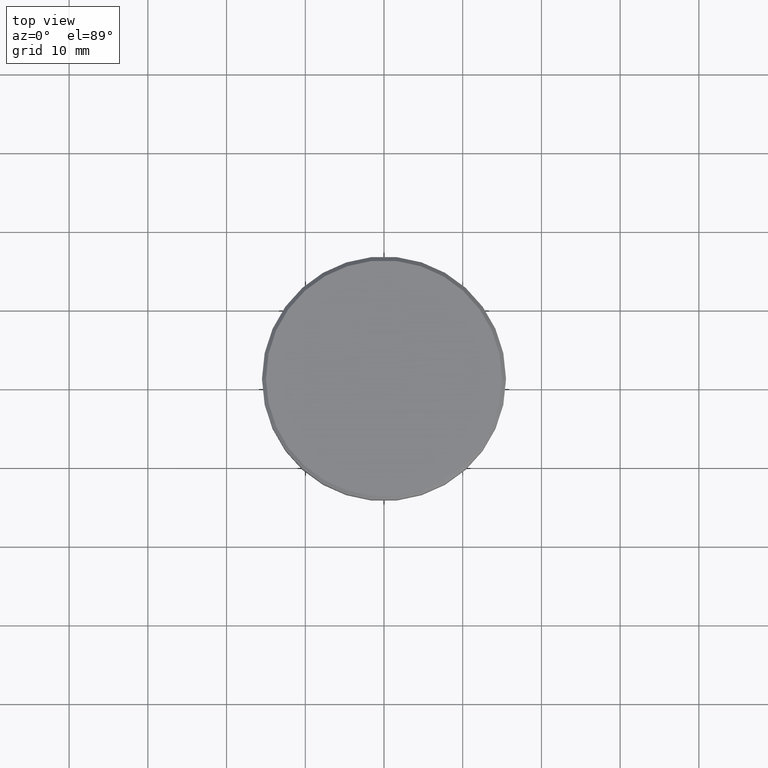
[diagram: clean part render]
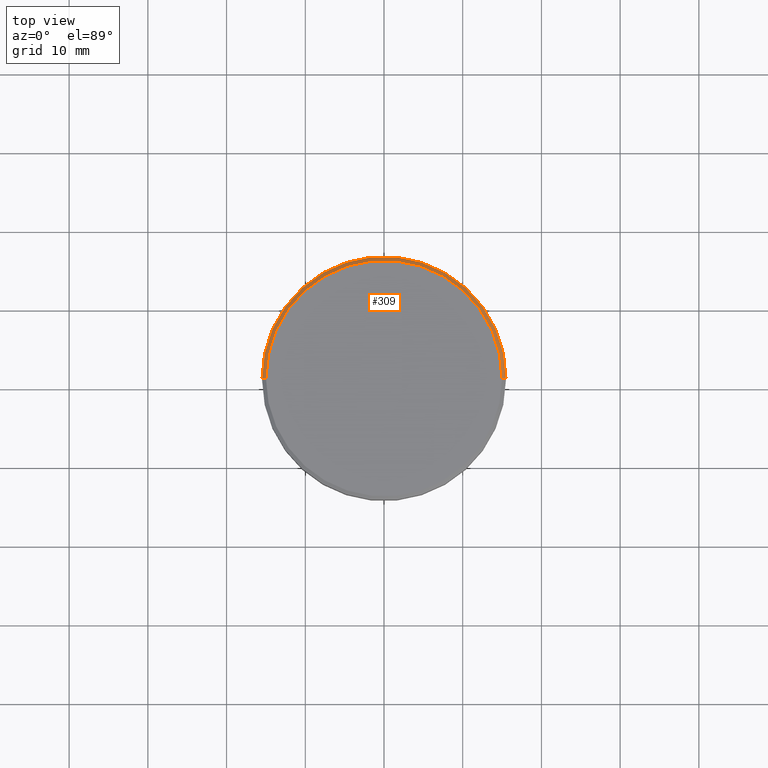
[diagram: same view with one face highlighted and labeled with its STEP entity id]
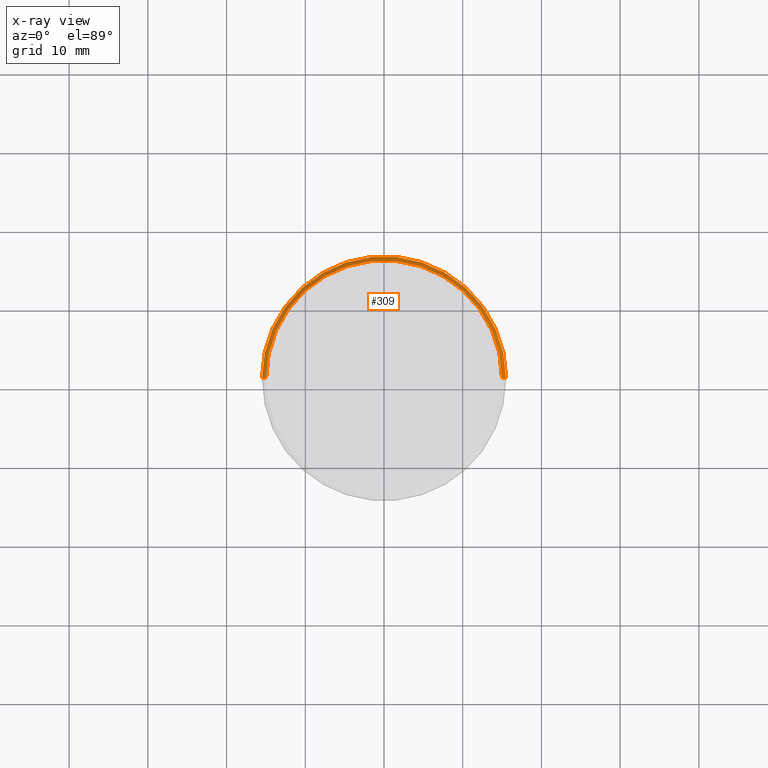
[diagram: x-ray of the same camera — body ghosted, the highlighted face saturated]
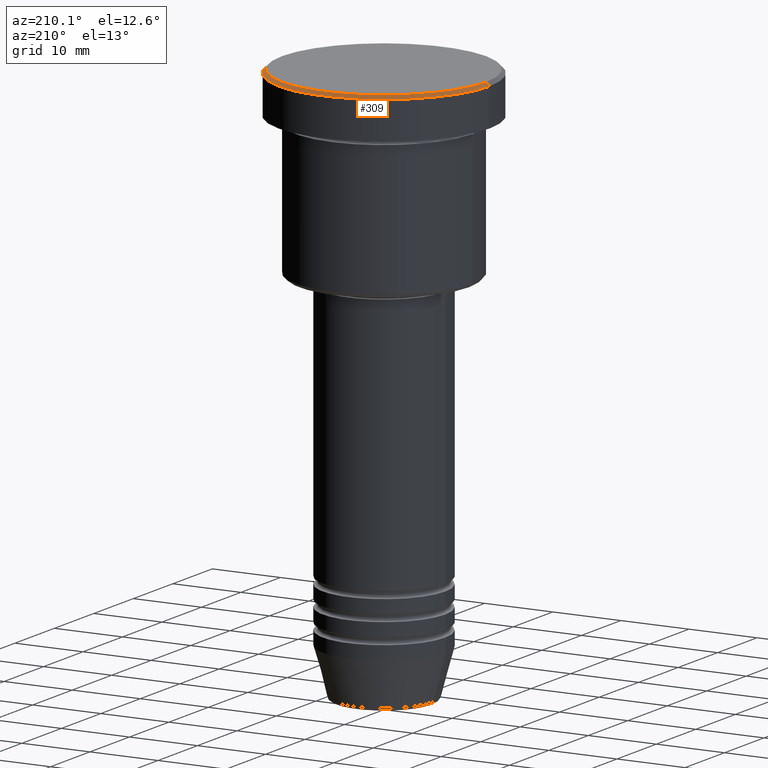
[diagram: same view with one face highlighted and labeled with its STEP entity id]
A machine part, top view. The second image highlights one B-rep face of the part: STEP entity #309.
The next image is the same camera in x-ray: the body ghosted, the highlighted face saturated — about 0% of this face is hidden behind the body in this view.
A second angle (auxiliary view) of the same face is appended — the face is thin or edge-on in the first view.
In plain terms, the highlighted conical surface has half-angle 45 deg.
Its self-contained STEP definition (entity closure, byte-faithful):
#4 = EDGE_CURVE ( 'NONE', #941, #603, #370, .T. ) ;
#7 = DIRECTION ( 'NONE',  ( -1.000000000000000000, 0.000000000000000000, 0.000000000000000000 ) ) ;
#75 = EDGE_LOOP ( 'NONE', ( #521, #931, #323, #171 ) ) ;
#88 = DIRECTION ( 'NONE',  ( 1.000000000000000000, 0.000000000000000000, 0.000000000000000000 ) ) ;
#130 = VERTEX_POINT ( 'NONE', #971 ) ;
#144 = CARTESIAN_POINT ( 'NONE',  ( 15.50000000000000000, 0.000000000000000000, -0.4999999999999848455 ) ) ;
#171 = ORIENTED_EDGE ( 'NONE', *, *, #945, .F. ) ;
#179 = AXIS2_PLACEMENT_3D ( 'NONE', #898, #1076, #7 ) ;
#259 = VECTOR ( 'NONE', #1024, 1000.000000000000000 ) ;
#286 = CARTESIAN_POINT ( 'NONE',  ( -15.50000000000000000, 1.898202538678397557E-15, -0.4999999999999848455 ) ) ;
#309 = ADVANCED_FACE ( 'NONE', ( #372 ), #870, .T. ) ;
#323 = ORIENTED_EDGE ( 'NONE', *, *, #4, .F. ) ;
#344 = CARTESIAN_POINT ( 'NONE',  ( 0.000000000000000000, 0.000000000000000000, 0.000000000000000000 ) ) ;
#370 = CIRCLE ( 'NONE', #796, 15.50000000000000000 ) ;
#372 = FACE_OUTER_BOUND ( 'NONE', #75, .T. ) ;
#398 = CARTESIAN_POINT ( 'NONE',  ( 0.000000000000000000, 0.000000000000000000, -0.4999999999999848455 ) ) ;
#408 = DIRECTION ( 'NONE',  ( 1.000000000000000000, 0.000000000000000000, 0.000000000000000000 ) ) ;
#441 = VERTEX_POINT ( 'NONE', #1112 ) ;
#521 = ORIENTED_EDGE ( 'NONE', *, *, #1175, .F. ) ;
#603 = VERTEX_POINT ( 'NONE', #144 ) ;
#634 = DIRECTION ( 'NONE',  ( -0.000000000000000000, -0.000000000000000000, 1.000000000000000000 ) ) ;
#642 = VECTOR ( 'NONE', #989, 1000.000000000000000 ) ;
#742 = CARTESIAN_POINT ( 'NONE',  ( 15.00000000000002665, 1.836970198721033139E-15, 0.000000000000000000 ) ) ;
#747 = EDGE_CURVE ( 'NONE', #441, #603, #1183, .T. ) ;
#755 = CARTESIAN_POINT ( 'NONE',  ( -15.00000000000002665, 0.000000000000000000, 0.000000000000000000 ) ) ;
#796 = AXIS2_PLACEMENT_3D ( 'NONE', #398, #837, #408 ) ;
#837 = DIRECTION ( 'NONE',  ( 0.000000000000000000, 0.000000000000000000, -1.000000000000000000 ) ) ;
#840 = LINE ( 'NONE', #755, #259 ) ;
#870 = CONICAL_SURFACE ( 'NONE', #179, 15.00000000000002665, 0.7853981633974361776 ) ;
#898 = CARTESIAN_POINT ( 'NONE',  ( 0.000000000000000000, 0.000000000000000000, 0.000000000000000000 ) ) ;
#931 = ORIENTED_EDGE ( 'NONE', *, *, #747, .T. ) ;
#941 = VERTEX_POINT ( 'NONE', #286 ) ;
#945 = EDGE_CURVE ( 'NONE', #130, #941, #840, .T. ) ;
#959 = AXIS2_PLACEMENT_3D ( 'NONE', #344, #634, #88 ) ;
#971 = CARTESIAN_POINT ( 'NONE',  ( -15.00000000000002665, 0.000000000000000000, 0.000000000000000000 ) ) ;
#989 = DIRECTION ( 'NONE',  ( 0.7071067811865389130, 8.659560562354828088E-17, -0.7071067811865561215 ) ) ;
#1011 = CIRCLE ( 'NONE', #959, 15.00000000000002665 ) ;
#1024 = DIRECTION ( 'NONE',  ( -0.7071067811865389130, 0.000000000000000000, -0.7071067811865561215 ) ) ;
#1076 = DIRECTION ( 'NONE',  ( 0.000000000000000000, 0.000000000000000000, -1.000000000000000000 ) ) ;
#1112 = CARTESIAN_POINT ( 'NONE',  ( 15.00000000000002665, 1.867586368699715348E-15, 0.000000000000000000 ) ) ;
#1175 = EDGE_CURVE ( 'NONE', #441, #130, #1011, .T. ) ;
#1183 = LINE ( 'NONE', #742, #642 ) ;